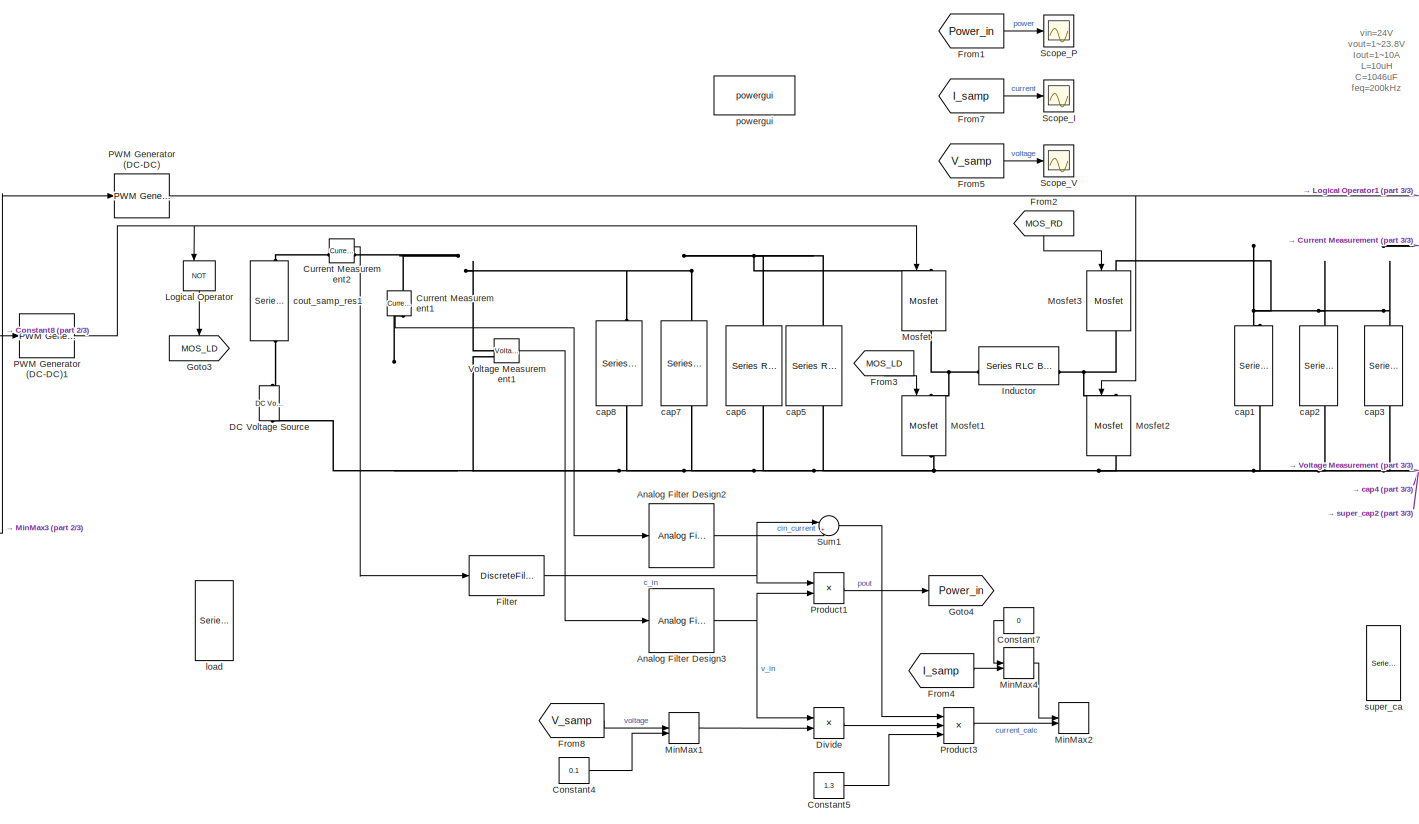
[diagram: root canvas - part 1/3, center side, full height]
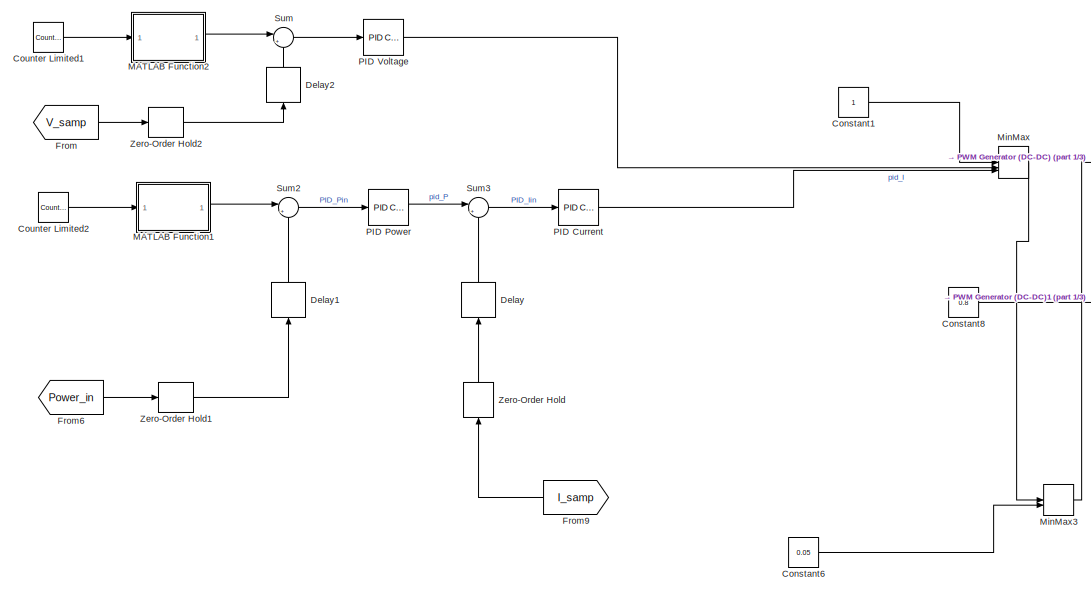
[diagram: root canvas - part 2/3, middle left region]
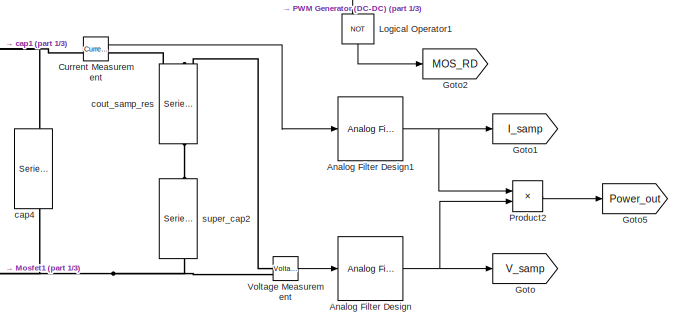
[diagram: root canvas - part 3/3, middle right region]
MODEL slx_d48c22215ae6
KIND model
CONFIG AbsTol = auto
CONFIG EnableMultiTasking = off
CONFIG FixedStep = auto
CONFIG MaxStep = auto
CONFIG MinStep = auto
CONFIG RelTol = 1e-3
CONFIG SampleTimeConstraint = Unconstrained
CONFIG SolverName = VariableStepAuto
CONFIG StartTime = 0
CONFIG StopTime = 0.04
BLOCK [Reference] Analog Filter Design  REF=dsparch4/Analog
Filter Design
  SourceBlock = dsparch4/Analog\nFilter Design
  SourceType = Analog Filter Design
BLOCK [Reference] Analog Filter Design1  REF=dsparch4/Analog
Filter Design
  SourceBlock = dsparch4/Analog\nFilter Design
  SourceType = Analog Filter Design
BLOCK [Reference] Analog Filter Design2  REF=dsparch4/Analog
Filter Design
  SourceBlock = dsparch4/Analog\nFilter Design
  SourceType = Analog Filter Design
BLOCK [Reference] Analog Filter Design3  REF=dsparch4/Analog
Filter Design
  SourceBlock = dsparch4/Analog\nFilter Design
  SourceType = Analog Filter Design
BLOCK [Constant] Constant1
  NameLocation = top
  SampleTime = 1/200e3
BLOCK [Constant] Constant4
  NameLocation = top
  SampleTime = 1/400e3
  Value = 0.1
BLOCK [Constant] Constant5
  NameLocation = top
  SampleTime = 1/400e3
  Value = 1.3
BLOCK [Constant] Constant6
  NameLocation = top
  SampleTime = 1/200e3
  Value = 0.05
BLOCK [Constant] Constant7
  SampleTime = 1/400e3
  Value = 0
BLOCK [Constant] Constant8
  NameLocation = top
  SampleTime = 1/200e3
  Value = 0.8
BLOCK [Reference] Counter Limited1  REF=simulink/Sources/Counter
Limited
  SourceBlock = simulink/Sources/Counter\nLimited
  SourceType = Counter Limited
BLOCK [Reference] Counter Limited2  REF=simulink/Sources/Counter
Limited
  SourceBlock = simulink/Sources/Counter\nLimited
  SourceType = Counter Limited
BLOCK [Reference] Current Measurement  REF=spsCurrentMeasurementLib/Current Measurement
  LibrarySourceBlock = sps_lib/Sensors and Measurements/Current Measurement
  SourceBlock = spsCurrentMeasurementLib/Current Measurement
  SourceType = Current Measurement
  UserDataPersistent = on
BLOCK [Reference] Current Measurement1  REF=spsCurrentMeasurementLib/Current Measurement
  LibrarySourceBlock = sps_lib/Sensors and Measurements/Current Measurement
  NameLocation = left
  SourceBlock = spsCurrentMeasurementLib/Current Measurement
  SourceType = Current Measurement
  UserDataPersistent = on
BLOCK [Reference] Current Measurement2  REF=spsCurrentMeasurementLib/Current Measurement
  LibrarySourceBlock = sps_lib/Sensors and Measurements/Current Measurement
  SourceBlock = spsCurrentMeasurementLib/Current Measurement
  SourceType = Current Measurement
  UserDataPersistent = on
BLOCK [Reference] DC Voltage Source  REF=spsDCVoltageSourceLib/DC Voltage Source
  LibrarySourceBlock = sps_lib/Sources/DC Voltage Source
  SourceBlock = spsDCVoltageSourceLib/DC Voltage Source
  SourceType = DC Voltage Source
BLOCK [Delay] Delay
  DelayLength = 1
  InitialCondition = 0
  InputPortMap = u0
  NameLocation = right
BLOCK [Delay] Delay1
  DelayLength = 1
  InitialCondition = 0
  InputPortMap = u0
  NameLocation = right
BLOCK [Delay] Delay2
  DelayLength = 1
  InitialCondition = 0
  InputPortMap = u0
  NameLocation = right
BLOCK [Product] Divide
  Inputs = */
BLOCK [DiscreteFilter] Filter
  Denominator = [1 -0.969067394733428955 0]
  FilterStructure = Direct form I
  InputPortMap = u0
  Numerator = [0.0154662914574146271 0.0154662914574146271 0]
  SampleTime = 1/400e3
  Tag = BlockMethodSubSystem
  a0EqualsOne = on
BLOCK [From] From
  GotoTag = V_samp
BLOCK [From] From1
  GotoTag = Power_in
BLOCK [From] From2
  GotoTag = MOS_RD
  NameLocation = left
BLOCK [From] From3
  GotoTag = MOS_LD
  NameLocation = left
BLOCK [From] From4
  GotoTag = I_samp
BLOCK [From] From5
  GotoTag = V_samp
BLOCK [From] From6
  GotoTag = Power_in
BLOCK [From] From7
  GotoTag = I_samp
BLOCK [From] From8
  GotoTag = V_samp
BLOCK [From] From9
  GotoTag = I_samp
  NameLocation = top
BLOCK [Goto] Goto
  GotoTag = V_samp
BLOCK [Goto] Goto1
  GotoTag = I_samp
BLOCK [Goto] Goto2
  GotoTag = MOS_RD
BLOCK [Goto] Goto3
  GotoTag = MOS_LD
  NameLocation = left
BLOCK [Goto] Goto4
  GotoTag = Power_in
BLOCK [Goto] Goto5
  GotoTag = Power_out
BLOCK [Reference] Inductor  REF=spsSeriesRLCBranchLib/Series RLC Branch
  LibrarySourceBlock = sps_lib/Passives/Series RLC Branch
  SourceBlock = spsSeriesRLCBranchLib/Series RLC Branch
  SourceType = Series RLC Branch
BLOCK [Logic] Logical Operator
  AllPortsSameDT = off
  IconShape = distinctive
  NameLocation = left
  Operator = NOT
BLOCK [Logic] Logical Operator1
  AllPortsSameDT = off
  IconShape = distinctive
  NameLocation = left
  Operator = NOT
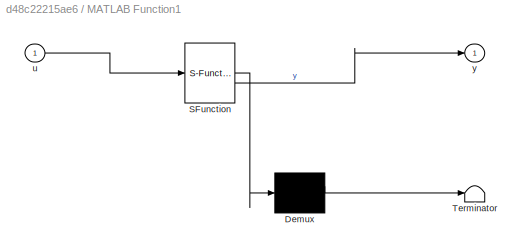
BLOCK [SubSystem] MATLAB Function1
  ErrorFcn = Stateflow.Translate.translate
  LibrarySourceBlock = simulink/User-Defined\nFunctions/MATLAB Function
  PermitHierarchicalResolution = ExplicitOnly
  SFBlockType = MATLAB Function
  TreatAsAtomicUnit = on
BLOCK [Demux] MATLAB Function1/ Demux 
  Outputs = 1
BLOCK [S-Function] MATLAB Function1/ SFunction 
  EnableBusSupport = on
  FunctionName = sf_sfun
  PortCounts = [1 2]
  SFcnIsStateOwnerBlock = off
  SFunctionDeploymentMode = off
  Tag = Stateflow S-Function 1
BLOCK [Terminator] MATLAB Function1/ Terminator 
BLOCK [Inport] MATLAB Function1/u
BLOCK [Outport] MATLAB Function1/y
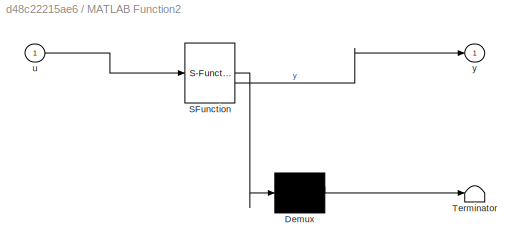
BLOCK [SubSystem] MATLAB Function2
  ErrorFcn = Stateflow.Translate.translate
  LibrarySourceBlock = simulink/User-Defined\nFunctions/MATLAB Function
  PermitHierarchicalResolution = ExplicitOnly
  SFBlockType = MATLAB Function
  TreatAsAtomicUnit = on
BLOCK [Demux] MATLAB Function2/ Demux 
  Outputs = 1
BLOCK [S-Function] MATLAB Function2/ SFunction 
  EnableBusSupport = on
  FunctionName = sf_sfun
  PortCounts = [1 2]
  SFcnIsStateOwnerBlock = off
  SFunctionDeploymentMode = off
  Tag = Stateflow S-Function 3
BLOCK [Terminator] MATLAB Function2/ Terminator 
BLOCK [Inport] MATLAB Function2/u
BLOCK [Outport] MATLAB Function2/y
BLOCK [MinMax] MinMax
  Inputs = 3
BLOCK [MinMax] MinMax1
  Function = max
  Inputs = 2
BLOCK [MinMax] MinMax2
  Inputs = 2
BLOCK [MinMax] MinMax3
  Function = max
  Inputs = 2
BLOCK [MinMax] MinMax4
  Function = max
  Inputs = 2
BLOCK [Reference] Mosfet  REF=spsMosfetLib/Mosfet
  LibrarySourceBlock = sps_lib/Power Electronics/Mosfet
  NameLocation = left
  SourceBlock = spsMosfetLib/Mosfet
  SourceType = Mosfet
BLOCK [Reference] Mosfet1  REF=spsMosfetLib/Mosfet
  LibrarySourceBlock = sps_lib/Power Electronics/Mosfet
  NameLocation = left
  SourceBlock = spsMosfetLib/Mosfet
  SourceType = Mosfet
BLOCK [Reference] Mosfet2  REF=spsMosfetLib/Mosfet
  LibrarySourceBlock = sps_lib/Power Electronics/Mosfet
  NameLocation = left
  SourceBlock = spsMosfetLib/Mosfet
  SourceType = Mosfet
BLOCK [Reference] Mosfet3  REF=spsMosfetLib/Mosfet
  LibrarySourceBlock = sps_lib/Power Electronics/Mosfet
  NameLocation = left
  SourceBlock = spsMosfetLib/Mosfet
  SourceType = Mosfet
BLOCK [Reference] PID Current  REF=slpidlib/PID Controller
  LibrarySourceBlock = simulink/Continuous/PID Controller
  SourceBlock = slpidlib/PID Controller
  SourceType = PID 1dof
BLOCK [Reference] PID Power  REF=slpidlib/PID Controller
  LibrarySourceBlock = simulink/Continuous/PID Controller
  SourceBlock = slpidlib/PID Controller
  SourceType = PID 1dof
BLOCK [Reference] PID Voltage  REF=slpidlib/PID Controller
  LibrarySourceBlock = simulink/Continuous/PID Controller
  SourceBlock = slpidlib/PID Controller
  SourceType = PID 1dof
BLOCK [Reference] PWM Generator (DC-DC)  REF=spsPWMGeneratorDCDCLib/PWM Generator
(DC-DC)
  LibrarySourceBlock = sps_lib/Power Electronics/Power Electronics Control/PWM Generator\n(DC-DC)
  SourceBlock = spsPWMGeneratorDCDCLib/PWM Generator\n(DC-DC)
  SourceType = PWM Generator (DC-DC)
BLOCK [Reference] PWM Generator (DC-DC)1  REF=spsPWMGeneratorDCDCLib/PWM Generator
(DC-DC)
  LibrarySourceBlock = sps_lib/Power Electronics/Power Electronics Control/PWM Generator\n(DC-DC)
  SourceBlock = spsPWMGeneratorDCDCLib/PWM Generator\n(DC-DC)
  SourceType = PWM Generator (DC-DC)
BLOCK [Product] Product1
BLOCK [Product] Product2
BLOCK [Product] Product3
  Inputs = 3
BLOCK [Scope] Scope_I
  Floating = off
  NumInputPorts = 1
  ScopeSpecificationString = Simulink.scopes.TimeScopeBlockCfg('CurrentConfiguration', extmgr.ConfigurationSet(extmgr.Configuration('Core','General UI',true),extmgr.Configuration('Core','Source UI',true),extmgr.Configuration('Sources','WiredSimulink',true,'DataLoggingVariableName','ScopeData1'),extmgr.Configuration('Visuals','Time Domain',true,'SerializedDisplays',{struct('MinYLimReal','-2.64156','MaxYLimReal','11.44331','YLa...<+1470ch>
BLOCK [Scope] Scope_P
  Floating = off
  NumInputPorts = 1
  ScopeSpecificationString = Simulink.scopes.TimeScopeBlockCfg('CurrentConfiguration', extmgr.ConfigurationSet(extmgr.Configuration('Core','General UI',true),extmgr.Configuration('Core','Source UI',true),extmgr.Configuration('Sources','WiredSimulink',true,'DataLoggingVariableName','ScopeData2'),extmgr.Configuration('Visuals','Time Domain',true,'SerializedDisplays',{struct('MinYLimReal','-6.25707','MaxYLimReal','56.31361','YLa...<+1474ch>
BLOCK [Scope] Scope_V
  Floating = off
  NumInputPorts = 1
  ScopeSpecificationString = Simulink.scopes.TimeScopeBlockCfg('CurrentConfiguration', extmgr.ConfigurationSet(extmgr.Configuration('Core','General UI',true),extmgr.Configuration('Core','Source UI',true),extmgr.Configuration('Sources','WiredSimulink',true),extmgr.Configuration('Visuals','Time Domain',true,'SerializedDisplays',{struct('MinYLimReal','-1.79772','MaxYLimReal','16.17948','YLabelReal','','MinYLimMag','0.00000','Max...<+1433ch>
BLOCK [Sum] Sum
  Inputs = |+-
BLOCK [Sum] Sum1
  Inputs = |+-
BLOCK [Sum] Sum2
  Inputs = |+-
BLOCK [Sum] Sum3
  Inputs = |+-
BLOCK [Reference] Voltage Measurement  REF=spsVoltageMeasurementLib/Voltage Measurement
  LibrarySourceBlock = sps_lib/Sensors and Measurements/Voltage Measurement
  SourceBlock = spsVoltageMeasurementLib/Voltage Measurement
  SourceType = Voltage Measurement
  UserDataPersistent = on
BLOCK [Reference] Voltage Measurement1  REF=spsVoltageMeasurementLib/Voltage Measurement
  LibrarySourceBlock = sps_lib/Sensors and Measurements/Voltage Measurement
  SourceBlock = spsVoltageMeasurementLib/Voltage Measurement
  SourceType = Voltage Measurement
  UserDataPersistent = on
BLOCK [ZeroOrderHold] Zero-Order Hold
  NameLocation = right
  SampleTime = 1/200e3
BLOCK [ZeroOrderHold] Zero-Order Hold1
  SampleTime = 1/200e3
BLOCK [ZeroOrderHold] Zero-Order Hold2
  SampleTime = 1/200e3
BLOCK [Reference] cap1  REF=spsSeriesRLCBranchLib/Series RLC Branch
  LibrarySourceBlock = sps_lib/Passives/Series RLC Branch
  NameLocation = left
  SourceBlock = spsSeriesRLCBranchLib/Series RLC Branch
  SourceType = Series RLC Branch
BLOCK [Reference] cap2  REF=spsSeriesRLCBranchLib/Series RLC Branch
  LibrarySourceBlock = sps_lib/Passives/Series RLC Branch
  NameLocation = left
  SourceBlock = spsSeriesRLCBranchLib/Series RLC Branch
  SourceType = Series RLC Branch
BLOCK [Reference] cap3  REF=spsSeriesRLCBranchLib/Series RLC Branch
  LibrarySourceBlock = sps_lib/Passives/Series RLC Branch
  NameLocation = left
  SourceBlock = spsSeriesRLCBranchLib/Series RLC Branch
  SourceType = Series RLC Branch
BLOCK [Reference] cap4  REF=spsSeriesRLCBranchLib/Series RLC Branch
  LibrarySourceBlock = sps_lib/Passives/Series RLC Branch
  NameLocation = left
  SourceBlock = spsSeriesRLCBranchLib/Series RLC Branch
  SourceType = Series RLC Branch
BLOCK [Reference] cap5  REF=spsSeriesRLCBranchLib/Series RLC Branch
  LibrarySourceBlock = sps_lib/Passives/Series RLC Branch
  NameLocation = top
  SourceBlock = spsSeriesRLCBranchLib/Series RLC Branch
  SourceType = Series RLC Branch
BLOCK [Reference] cap6  REF=spsSeriesRLCBranchLib/Series RLC Branch
  LibrarySourceBlock = sps_lib/Passives/Series RLC Branch
  NameLocation = top
  SourceBlock = spsSeriesRLCBranchLib/Series RLC Branch
  SourceType = Series RLC Branch
BLOCK [Reference] cap7  REF=spsSeriesRLCBranchLib/Series RLC Branch
  LibrarySourceBlock = sps_lib/Passives/Series RLC Branch
  NameLocation = top
  SourceBlock = spsSeriesRLCBranchLib/Series RLC Branch
  SourceType = Series RLC Branch
BLOCK [Reference] cap8  REF=spsSeriesRLCBranchLib/Series RLC Branch
  LibrarySourceBlock = sps_lib/Passives/Series RLC Branch
  NameLocation = top
  SourceBlock = spsSeriesRLCBranchLib/Series RLC Branch
  SourceType = Series RLC Branch
BLOCK [Reference] cout_samp_res  REF=spsSeriesRLCBranchLib/Series RLC Branch
  LibrarySourceBlock = sps_lib/Passives/Series RLC Branch
  NameLocation = left
  SourceBlock = spsSeriesRLCBranchLib/Series RLC Branch
  SourceType = Series RLC Branch
BLOCK [Reference] cout_samp_res1  REF=spsSeriesRLCBranchLib/Series RLC Branch
  LibrarySourceBlock = sps_lib/Passives/Series RLC Branch
  NameLocation = left
  SourceBlock = spsSeriesRLCBranchLib/Series RLC Branch
  SourceType = Series RLC Branch
BLOCK [Reference] load  REF=spsSeriesRLCBranchLib/Series RLC Branch
  LibrarySourceBlock = sps_lib/Passives/Series RLC Branch
  SourceBlock = spsSeriesRLCBranchLib/Series RLC Branch
  SourceType = Series RLC Branch
BLOCK [Reference] powergui  REF=sps_lib/powergui
  Priority = 1
  SourceBlock = sps_lib/powergui
  SourceType = PSB option menu block
BLOCK [Reference] super_ca  REF=spsSeriesRLCBranchLib/Series RLC Branch
  LibrarySourceBlock = sps_lib/Passives/Series RLC Branch
  SourceBlock = spsSeriesRLCBranchLib/Series RLC Branch
  SourceType = Series RLC Branch
BLOCK [Reference] super_cap2  REF=spsSeriesRLCBranchLib/Series RLC Branch
  LibrarySourceBlock = sps_lib/Passives/Series RLC Branch
  SourceBlock = spsSeriesRLCBranchLib/Series RLC Branch
  SourceType = Series RLC Branch
ANNOTATION (root): vin=24V vout=1~23.8V Iout=1~10A L=10uH C=1046uF feq=200kHz
NET Analog Filter Design1:1 -> Goto1:1, Product2:1
LINE Analog Filter Design2:1 -> Sum1:2
NET Analog Filter Design3:1 -> Divide:1, Product1:2
NET Analog Filter Design:1 -> Goto:1, Product2:2
LINE Constant1:1 -> MinMax:1
LINE Constant4:1 -> MinMax1:2
LINE Constant5:1 -> Product3:3
LINE Constant6:1 -> MinMax3:2
LINE Constant7:1 -> MinMax4:1
LINE Constant8:1 -> PWM Generator (DC-DC)1:1
LINE Counter Limited1:1 -> MATLAB Function2:1
LINE Counter Limited2:1 -> MATLAB Function1:1
LINE Current Measurement1:1 -> Analog Filter Design2:1
LINE Current Measurement2:1 -> Filter:1
LINE Current Measurement:1 -> Analog Filter Design1:1
LINE Delay1:1 -> Sum2:2
LINE Delay2:1 -> Sum:2
LINE Delay:1 -> Sum3:2
LINE Divide:1 -> Product3:2
NET Filter:1 -> Product1:1, Sum1:1
LINE From1:1 -> Scope_P:1
LINE From2:1 -> Mosfet3:1
LINE From3:1 -> Mosfet1:1
LINE From4:1 -> MinMax4:2
LINE From5:1 -> Scope_V:1
LINE From6:1 -> Zero-Order Hold1:1
LINE From7:1 -> Scope_I:1
LINE From8:1 -> MinMax1:1
LINE From9:1 -> Zero-Order Hold:1
LINE From:1 -> Zero-Order Hold2:1
LINE Logical Operator1:1 -> Goto2:1
LINE Logical Operator:1 -> Goto3:1
LINE MATLAB Function1:1 -> Sum2:1
LINE MATLAB Function2:1 -> Sum:1
LINE MinMax1:1 -> Divide:2
LINE MinMax3:1 -> PWM Generator (DC-DC):1
LINE MinMax4:1 -> MinMax2:1
LINE MinMax:1 -> MinMax3:1
LINE PID Current:1 -> MinMax:3
LINE PID Power:1 -> Sum3:1
LINE PID Voltage:1 -> MinMax:2
NET PWM Generator (DC-DC)1:1 -> Logical Operator:1, Mosfet:1
NET PWM Generator (DC-DC):1 -> Logical Operator1:1, Mosfet2:1
LINE Product1:1 -> Goto4:1
LINE Product2:1 -> Goto5:1
LINE Product3:1 -> MinMax2:2
LINE Sum1:1 -> Product3:1
LINE Sum2:1 -> PID Power:1
LINE Sum3:1 -> PID Current:1
LINE Sum:1 -> PID Voltage:1
LINE Voltage Measurement1:1 -> Analog Filter Design3:1
LINE Voltage Measurement:1 -> Analog Filter Design:1
LINE Zero-Order Hold1:1 -> Delay1:1
LINE Zero-Order Hold2:1 -> Delay2:1
LINE Zero-Order Hold:1 -> Delay:1
PNET net1: Current Measurement1:LConn1 -- Current Measurement2:RConn1 -- Mosfet:LConn1 -- Voltage Measurement1:LConn1 -- cap5:LConn1 -- cap6:LConn1 -- cap7:LConn1 -- cap8:LConn1
PLINE Current Measurement2:LConn1 -- cout_samp_res1:RConn1
PNET net2: Current Measurement:LConn1 -- Mosfet3:LConn1 -- cap1:LConn1 -- cap2:LConn1 -- cap3:LConn1 -- cap4:LConn1
PNET net3: Current Measurement:RConn1 -- Voltage Measurement:LConn1 -- cout_samp_res:RConn1
PNET net4: DC Voltage Source:LConn1 -- Mosfet1:RConn1 -- Mosfet2:RConn1 -- Voltage Measurement1:LConn2 -- Voltage Measurement:LConn2 -- cap1:RConn1 -- cap2:RConn1 -- cap3:RConn1 -- cap4:RConn1 -- cap5:RConn1 -- cap6:RConn1 -- cap7:RConn1 -- cap8:RConn1 -- super_cap2:RConn1
PLINE DC Voltage Source:RConn1 -- cout_samp_res1:LConn1
PNET net5: Inductor:LConn1 -- Mosfet1:LConn1 -- Mosfet:RConn1
PNET net6: Inductor:RConn1 -- Mosfet2:LConn1 -- Mosfet3:RConn1
PLINE cout_samp_res:LConn1 -- super_cap2:LConn1
note: NET lines group one-source signal fan-out (src -> all destinations, sorted); 1:1 wires keep LINE; PNET lines group multi-terminal physical nets as a canonical sorted terminal list (undirected conserving connections); 2-terminal nets keep the pairwise PLINE form
CHART MATLAB Function2 states=1 transitions=1
  STATE_LABEL 'eML_blk_kernel()'
  STATE_LABEL 'SCRIPT:\nfunction y = fcn(u)\n\npersistent one\n\nif isempty(one) %init ten\n    one = 23;\nend\n\n% if u>=1500\n%     one = 20;\n% end\n\ny = one;\n\nend\n'
CHART MATLAB Function1 states=1 transitions=1
  STATE_LABEL 'eML_blk_kernel()'
  STATE_LABEL 'SCRIPT:\nfunction y = fcn(u)\n\npersistent one\n\nif isempty(one) %init ten\n    one = 100;\nend\n\n% if u==8000\n%     one = 65;\n% end\n\ny = one;\n\nend\n'
CHART  states=0 transitions=0
CHART  states=0 transitions=0
